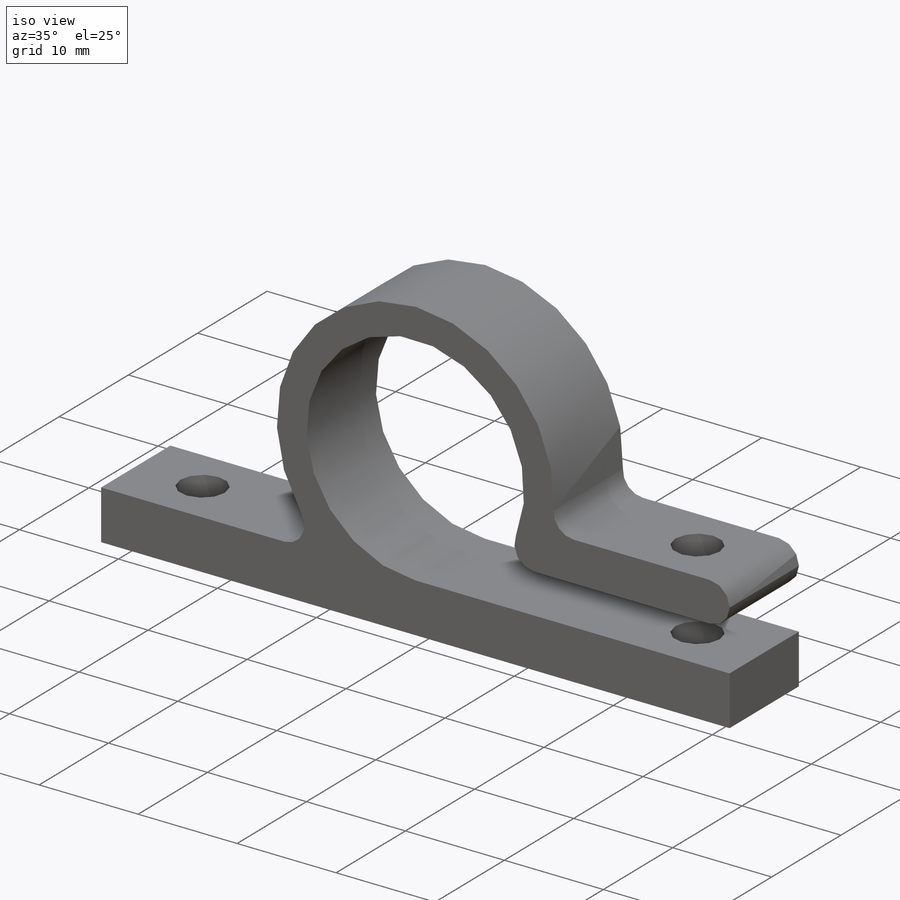
[diagram: iso view]
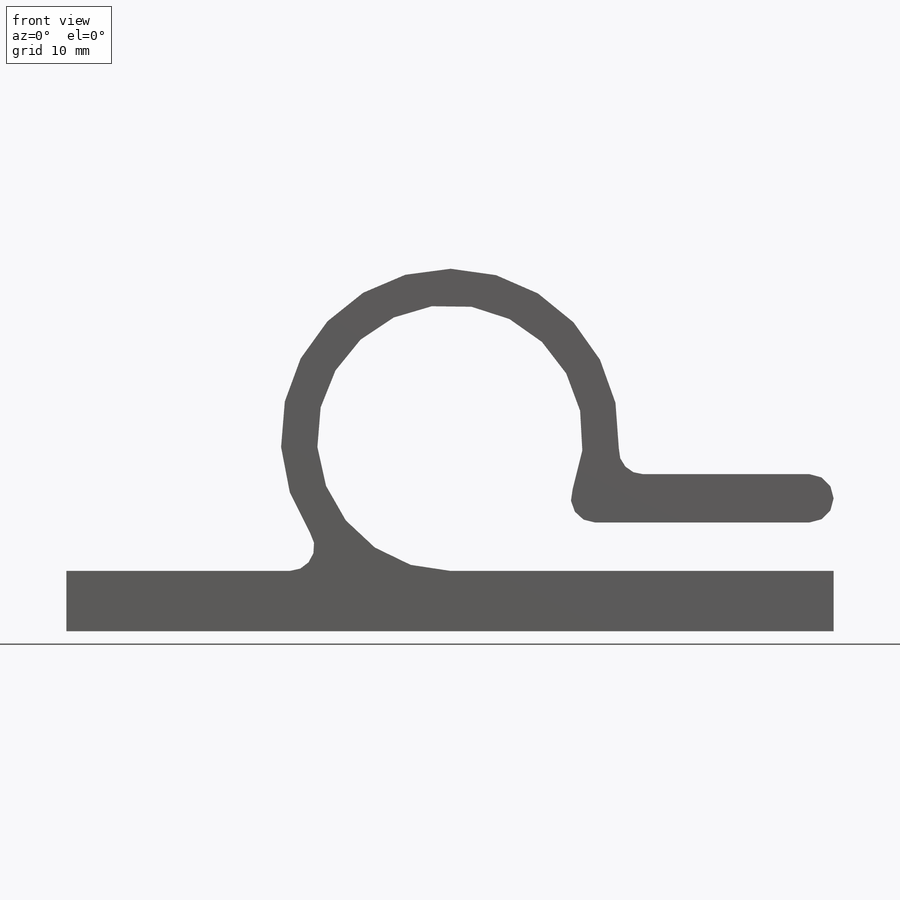
[diagram: front view]
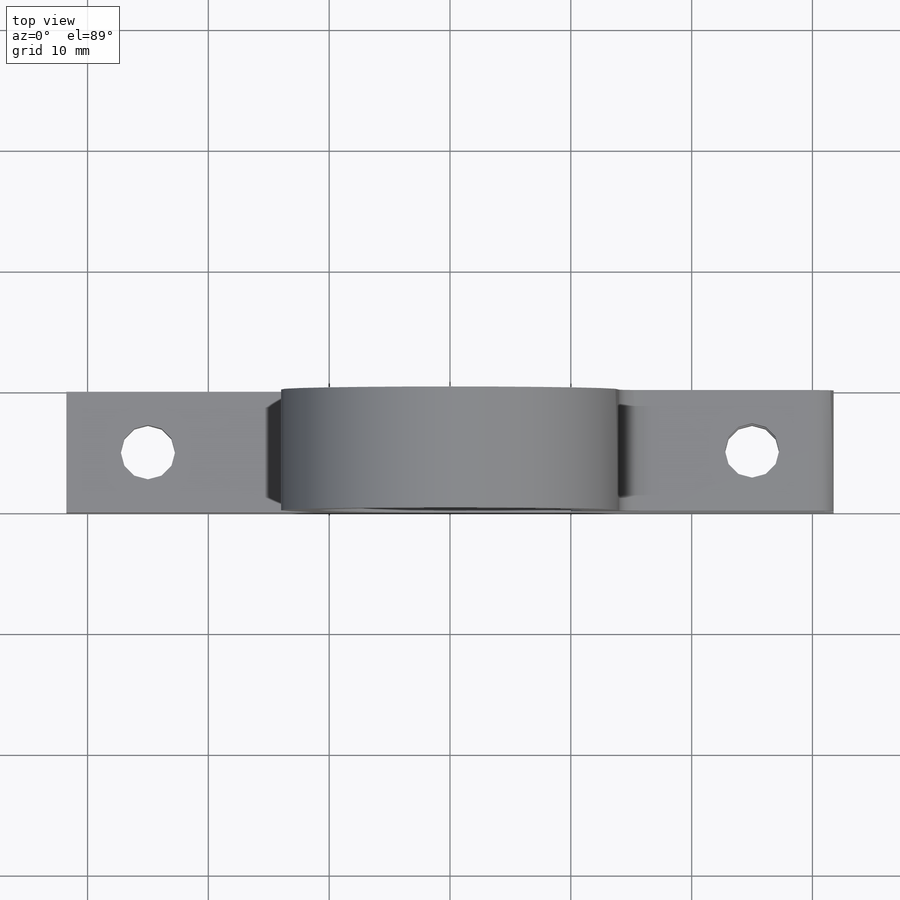
[diagram: top view]
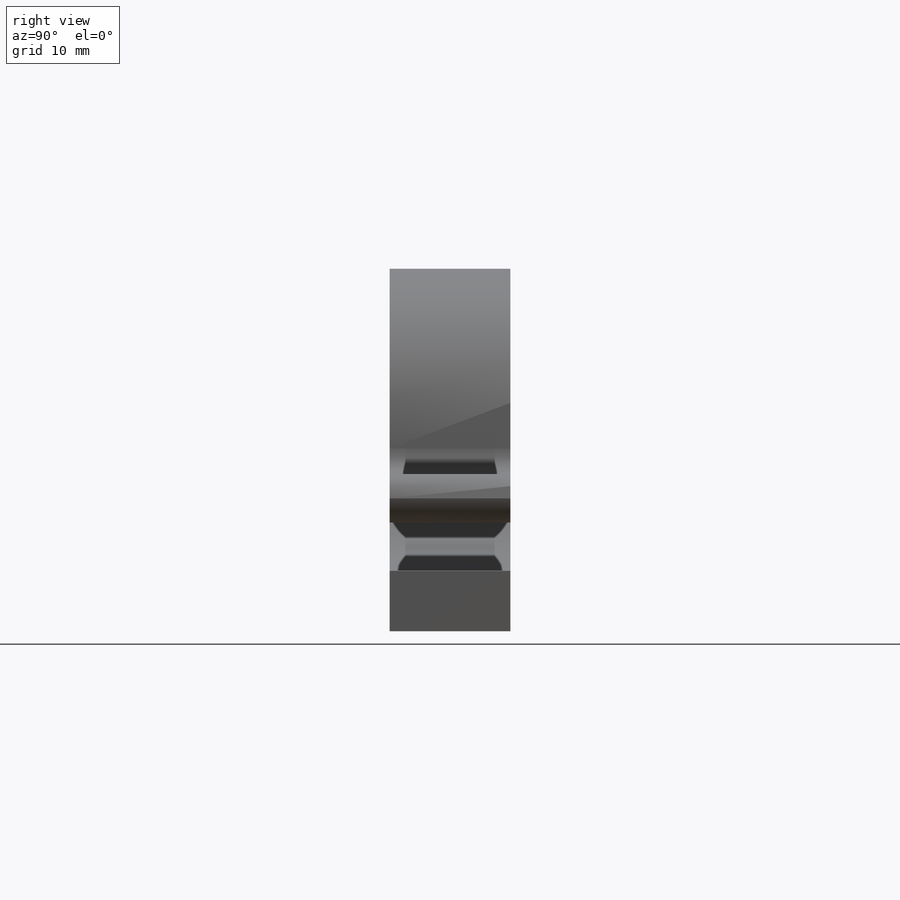
[diagram: right view]
SOLIDWORKS PART (.sldprt)
format: sldprt  version: not decoded by parser v0  size: 303,616 bytes
history: native  units: mm
features: sketch x4, plane x3, fillet x2, material x1, extrude x1, hole x1 (+8 scaffold rows collapsed)
feature tree (20):
  scaffold x8  (default folders/planes/origin — collapsed)
  material  "Сплав 2024"
  plane  "Спереди"
  plane  "Сверху"
  plane  "Справа"
  sketch  "Эскиз1"  dims[c1.D1=22.0mm c1.D6=5.0mm c1.D7=5.0mm c1.D9=~2.202776mm c1.D3=~6.031625mm c1.D4=~83.495018mm c2.D3=63.5mm c2.D4=25.0mm c2.D5=25.0mm c2.D8=4.0mm c2.D9=~22.405357mm c2.D2=5.0mm c2.D7=~2.449537mm c3.D8=~6.457871mm c3.D7=3.0mm c4.D8=4.0mm c4.D7=4.0mm c4.D9=4.0mm c4.D2=3.0mm c4.D6=3.0mm]
  extrude  "Бобышка-Вытянуть2"  Depth=10mm
  sketch  "Эскиз2"  dims[D1=25.0mm D2=25.0mm]
  hole  "Отверстие с зазором M41"  [1 undecoded]
  sketch  "Эскиз4"
  sketch  "Эскиз3"  dims[hole-wizard template sketch: 60 standard entries collapsed; hole parameters kept: c18.Глубина сквозного отверстия=30.0mm]
  fillet  "Скругление1"  Radius=4mm
  fillet  "Скругление2"  Radius=2mm
decode coverage: 6 of 8 modeling features carry decoded parameters
note: ~ marks probable driven/reference dimensions
note: 1 parameter value undecoded
note: suppression state not decoded; provenance and decode notes live in map.json
